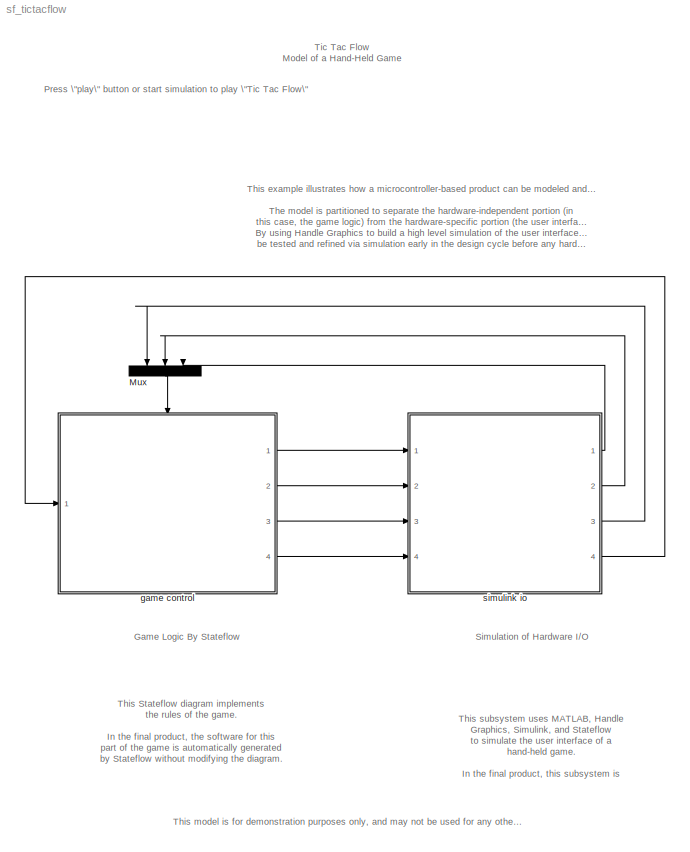
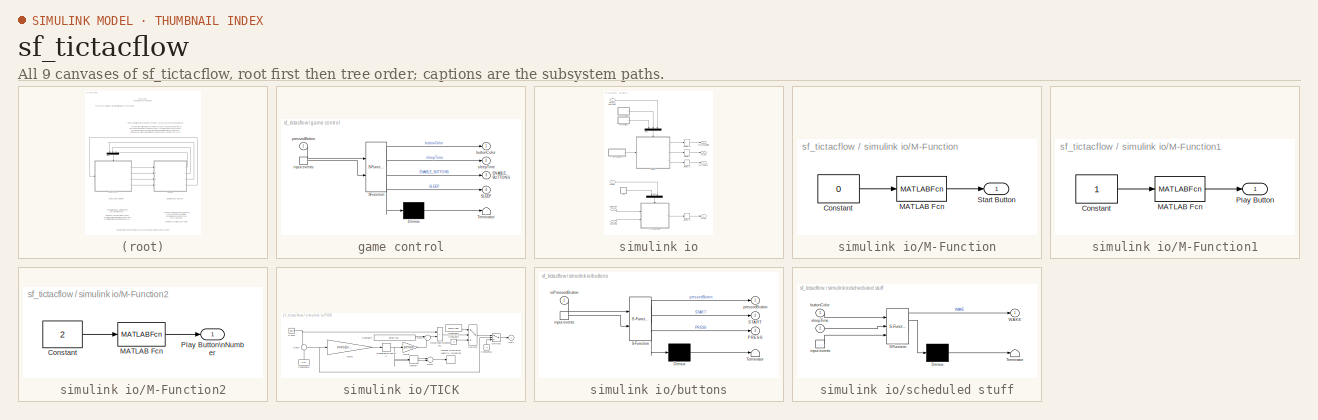
[diagram: thumbnail index - all 9 canvases of the model, root first then tree order]
MODEL sf_tictacflow
KIND model
BLOCK [Mux] Mux
  DisplayOption = bar
  Inputs = 3
  Ports = [3, 1]
BLOCK [SubSystem] game control
  MaskDescription = Stateflow diagram
  MaskDisplay = plot(sf('Private','sfblk','xIcon'),sf('Private','sfblk','yIcon'));text(0.5,0,sf('Private', 'sfblk', 'tIcon'),'HorizontalAl','Center','VerticalAl','Bottom');
  MaskIconFrame = off
  MaskIconOpaque = off
  MaskIconRotate = none
  MaskIconUnits = autoscale
  MaskSelfModifiable = on
  MaskType = Stateflow
  MinAlgLoopOccurrences = off
  Ports = [1, 4, 0, 1]
  PropExecContextAcrossSSBoundary = on
  RTWSystemCode = Auto
  TreatAsAtomicUnit = on
BLOCK [Demux] game control/ Demux 
  Outputs = 1
  Ports = [1, 1]
BLOCK [S-Function] game control/ SFunction 
  FunctionName = sf_sfun
  PortCounts = [2 5]
  Ports = [2, 5]
  Tag = Stateflow S-Function sf_tictacflow 1
BLOCK [Terminator] game control/ Terminator 
BLOCK [TriggerPort] game control/ input events 
  Ports = [0, 1]
  ShowOutputPort = on
  TriggerType = either
BLOCK [Outport] game control/ENABLE_BUTTONS
  IconDisplay = Port number
  Port = 3
BLOCK [Outport] game control/SLEEP
  IconDisplay = Port number
  Port = 4
BLOCK [Outport] game control/buttonColor
  IconDisplay = Port number
BLOCK [Inport] game control/pressedButton
  IconDisplay = Port number
  LatchInput = off
  Port = 1
BLOCK [Outport] game control/sleepTime
  IconDisplay = Port number
  Port = 2
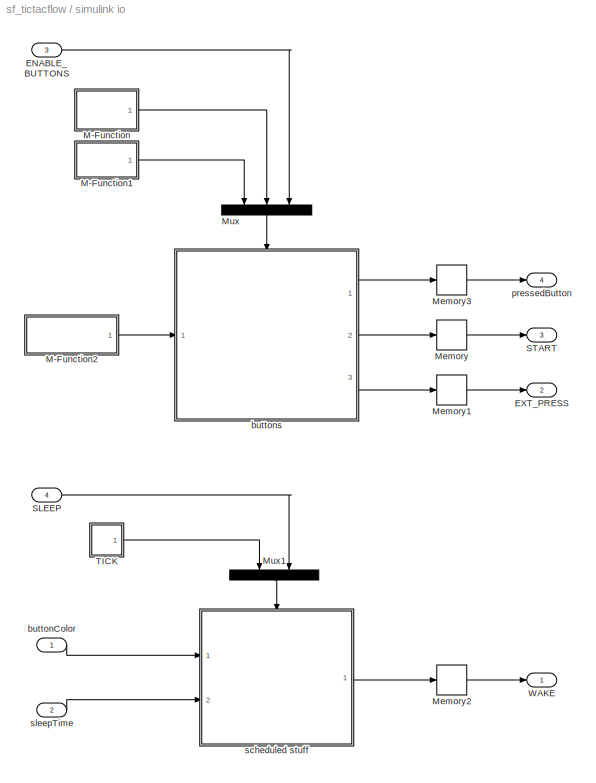
BLOCK [SubSystem] simulink io
  MinAlgLoopOccurrences = off
  Ports = [4, 4]
  PropExecContextAcrossSSBoundary = on
  RTWSystemCode = Auto
  StopFcn = if ishandle(1.000000); delete(1.000000); end;
  TreatAsAtomicUnit = off
BLOCK [Inport] simulink io/ENABLE_BUTTONS
  IconDisplay = Port number
  LatchInput = off
  Port = 3
BLOCK [Outport] simulink io/EXT_PRESS
  IconDisplay = Port number
  Port = 2
BLOCK [SubSystem] simulink io/M-Function
  MinAlgLoopOccurrences = off
  Ports = [0, 1]
  PropExecContextAcrossSSBoundary = on
  RTWSystemCode = Auto
  TreatAsAtomicUnit = off
BLOCK [Constant] simulink io/M-Function/Constant
  Value = 0
BLOCK [MATLABFcn] simulink io/M-Function/MATLAB Fcn
  MATLABFcn = sf_tictacflowgui
BLOCK [Outport] simulink io/M-Function/Start Button
  IconDisplay = Port number
BLOCK [SubSystem] simulink io/M-Function1
  MinAlgLoopOccurrences = off
  Ports = [0, 1]
  PropExecContextAcrossSSBoundary = on
  RTWSystemCode = Auto
  TreatAsAtomicUnit = off
BLOCK [Constant] simulink io/M-Function1/Constant
BLOCK [MATLABFcn] simulink io/M-Function1/MATLAB Fcn
  MATLABFcn = sf_tictacflowgui
BLOCK [Outport] simulink io/M-Function1/Play Button
  IconDisplay = Port number
BLOCK [SubSystem] simulink io/M-Function2
  MinAlgLoopOccurrences = off
  Ports = [0, 1]
  PropExecContextAcrossSSBoundary = on
  RTWSystemCode = Auto
  TreatAsAtomicUnit = off
BLOCK [Constant] simulink io/M-Function2/Constant
  Value = 2
BLOCK [MATLABFcn] simulink io/M-Function2/MATLAB Fcn
  MATLABFcn = sf_tictacflowgui
BLOCK [Outport] simulink io/M-Function2/Play Button\nNumber
  IconDisplay = Port number
BLOCK [Memory] simulink io/Memory
BLOCK [Memory] simulink io/Memory1
BLOCK [Memory] simulink io/Memory2
BLOCK [Memory] simulink io/Memory3
BLOCK [Mux] simulink io/Mux
  DisplayOption = bar
  Inputs = 3
  Ports = [3, 1]
BLOCK [Mux] simulink io/Mux1
  DisplayOption = bar
  Inputs = 2
  Ports = [2, 1]
BLOCK [Inport] simulink io/SLEEP
  IconDisplay = Port number
  LatchInput = off
  Port = 4
BLOCK [Outport] simulink io/START
  IconDisplay = Port number
  Port = 3
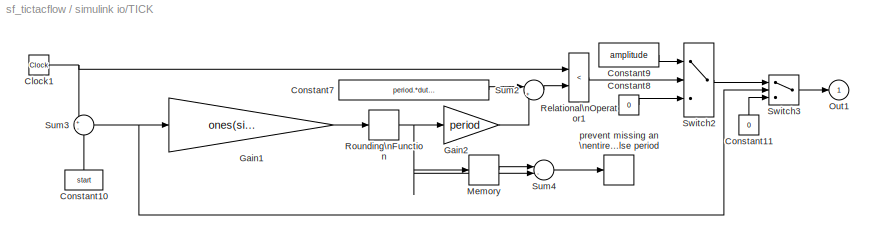
BLOCK [SubSystem] simulink io/TICK
  MaskCallbackString = |||
  MaskDescription = Pulse Generator
  MaskDisplay = plot(0,0,100,100,[95,90,90,75,75,60,60,45,45,30,30,15,15,5],[25,25,75,75,25,25,75,75,25,25,75,75,25,25]);
  MaskEnableString = on,on,on,on
  MaskHelp = Pulse generator which ensures pulse transitions are hit. Provides a vector of pulses when the height is entered as a vector.  Unmask to see how it works.
  MaskIconFrame = on
  MaskIconOpaque = on
  MaskIconRotate = none
  MaskIconUnits = autoscale
  MaskInitialization = \n
  MaskPromptString = Period (secs):|Duty cycle (% of period):|Amplitude:|Start time:
  MaskStyleString = edit,edit,edit,edit
  MaskTabNameString = ,,,
  MaskToolTipString = on,on,on,on
  MaskTunableValueString = on,on,on,on
  MaskType = Pulse Generator
  MaskValueString = 1/60|50|1|0
  MaskVarAliasString = ,,,
  MaskVariables = period=@1;duty=@2;amplitude=@3;start=@4;
  MaskVisibilityString = on,on,on,on
  MinAlgLoopOccurrences = off
  Ports = [0, 1]
  PropExecContextAcrossSSBoundary = on
  RTWSystemCode = Auto
  TreatAsAtomicUnit = off
BLOCK [Clock] simulink io/TICK/Clock1
  Decimation = 10
BLOCK [Constant] simulink io/TICK/Constant10
  Value = start
BLOCK [Constant] simulink io/TICK/Constant11
  Value = 0
BLOCK [Constant] simulink io/TICK/Constant7
  Value = period.*duty/100 + start
BLOCK [Constant] simulink io/TICK/Constant8
  Value = 0
BLOCK [Constant] simulink io/TICK/Constant9
  Value = amplitude
BLOCK [Gain] simulink io/TICK/Gain1
  Gain = ones(size(period))./period
BLOCK [Gain] simulink io/TICK/Gain2
  Gain = period
BLOCK [Memory] simulink io/TICK/Memory
BLOCK [Outport] simulink io/TICK/Out1
  IconDisplay = Port number
BLOCK [RelationalOperator] simulink io/TICK/Relational\nOperator1
  Operator = <
BLOCK [Rounding] simulink io/TICK/Rounding\nFunction
BLOCK [Sum] simulink io/TICK/Sum2
  IconShape = round
  Inputs = |++
  Ports = [2, 1]
BLOCK [Sum] simulink io/TICK/Sum3
  IconShape = round
  Inputs = +-
  Ports = [2, 1]
BLOCK [Sum] simulink io/TICK/Sum4
  IconShape = round
  Inputs = |-+
  Ports = [2, 1]
BLOCK [Switch] simulink io/TICK/Switch2
  Threshold = 0.5
BLOCK [Switch] simulink io/TICK/Switch3
BLOCK [HitCross] simulink io/TICK/prevent missing an \nentire pulse period
  HitCrossingDirection = either
  HitCrossingOffset = 1
  Ports = [1]
  ShowOutputPort = off
BLOCK [Outport] simulink io/WAKE
  IconDisplay = Port number
BLOCK [Inport] simulink io/buttonColor
  IconDisplay = Port number
  LatchInput = off
  Port = 1
BLOCK [SubSystem] simulink io/buttons
  MaskDescription = Stateflow diagram
  MaskDisplay = plot(sf('Private','sfblk','xIcon'),sf('Private','sfblk','yIcon'));text(0.5,0,sf('Private', 'sfblk', 'tIcon'),'HorizontalAl','Center','VerticalAl','Bottom');
  MaskIconFrame = off
  MaskIconOpaque = off
  MaskIconRotate = none
  MaskIconUnits = autoscale
  MaskSelfModifiable = on
  MaskType = Stateflow
  MinAlgLoopOccurrences = off
  Ports = [1, 3, 0, 1]
  PropExecContextAcrossSSBoundary = on
  RTWSystemCode = Auto
  TreatAsAtomicUnit = on
BLOCK [Demux] simulink io/buttons/ Demux 
  Outputs = 1
  Ports = [1, 1]
BLOCK [S-Function] simulink io/buttons/ SFunction 
  FunctionName = sf_sfun
  PortCounts = [2 4]
  Ports = [2, 4]
  Tag = Stateflow S-Function sf_tictacflow 2
BLOCK [Terminator] simulink io/buttons/ Terminator 
BLOCK [TriggerPort] simulink io/buttons/ input events 
  Ports = [0, 1]
  ShowOutputPort = on
  TriggerType = either
BLOCK [Outport] simulink io/buttons/PRESS
  IconDisplay = Port number
  Port = 3
BLOCK [Outport] simulink io/buttons/START
  IconDisplay = Port number
  Port = 2
BLOCK [Inport] simulink io/buttons/ioPressedButton
  IconDisplay = Port number
  LatchInput = off
  Port = 1
BLOCK [Outport] simulink io/buttons/pressedButton
  IconDisplay = Port number
BLOCK [Outport] simulink io/pressedButton
  IconDisplay = Port number
  Port = 4
BLOCK [SubSystem] simulink io/scheduled stuff
  MaskDescription = Stateflow diagram
  MaskDisplay = plot(sf('Private','sfblk','xIcon'),sf('Private','sfblk','yIcon'));text(0.5,0,sf('Private', 'sfblk', 'tIcon'),'HorizontalAl','Center','VerticalAl','Bottom');
  MaskIconFrame = off
  MaskIconOpaque = off
  MaskIconRotate = none
  MaskIconUnits = autoscale
  MaskSelfModifiable = on
  MaskType = Stateflow
  MinAlgLoopOccurrences = off
  Ports = [2, 1, 0, 1]
  PropExecContextAcrossSSBoundary = on
  RTWSystemCode = Auto
  TreatAsAtomicUnit = on
BLOCK [Demux] simulink io/scheduled stuff/ Demux 
  Outputs = 1
  Ports = [1, 1]
BLOCK [S-Function] simulink io/scheduled stuff/ SFunction 
  FunctionName = sf_sfun
  PortCounts = [3 2]
  Ports = [3, 2]
  Tag = Stateflow S-Function sf_tictacflow 3
BLOCK [Terminator] simulink io/scheduled stuff/ Terminator 
BLOCK [TriggerPort] simulink io/scheduled stuff/ input events 
  Ports = [0, 1]
  ShowOutputPort = on
  TriggerType = either
BLOCK [Outport] simulink io/scheduled stuff/WAKE
  IconDisplay = Port number
BLOCK [Inport] simulink io/scheduled stuff/buttonColor
  IconDisplay = Port number
  LatchInput = off
  Port = 1
BLOCK [Inport] simulink io/scheduled stuff/sleepTime
  IconDisplay = Port number
  LatchInput = off
  Port = 2
BLOCK [Inport] simulink io/sleepTime
  IconDisplay = Port number
  LatchInput = off
  Port = 2
ANNOTATION (root): Game Logic By Stateflow
ANNOTATION (root): Press \"play\" button or start simulation to play \"Tic Tac Flow\"
ANNOTATION (root): Simulation of Hardware I/O
ANNOTATION (root): This Stateflow diagram implements\nthe rules of the game.\n\nIn the final product, the software for this \npart of the game is automatically generated\n by Stateflow without modifying the diagram.
ANNOTATION (root): This example illustrates how a microcontroller-based product can be modeled and implemented using Stateflow.\n\nThe model is partitioned to separate the hardware-independent portion (in \nthis case, the game logic) from the hardware-specific portion (the user interface).\nBy using Handle Graphics to build a high level simulation of the user interface, the product concept can\n be tested and refine...<+307ch>
ANNOTATION (root): This model is for demonstration purposes only, and may not be used for any other purpose.
ANNOTATION (root): This subsystem uses MATLAB, Handle \nGraphics, Simulink, and Stateflow\n to simulate the user interface of a \nhand-held game.\n\nIn the final product, this subsystem is \nreplaced by electronic hardware and \nlow level driver software.
ANNOTATION (root): Tic Tac Flow\nModel of a Hand-Held Game
LINE Mux:1 -> game control:trigger
LINE game control/ Demux :1 -> game control/ Terminator :1
LINE game control/ SFunction :1 -> game control/ Demux :1
LINE game control/ SFunction :2 -> game control/buttonColor:1
LINE game control/ SFunction :3 -> game control/sleepTime:1
LINE game control/ SFunction :4 -> game control/ENABLE_BUTTONS:1
LINE game control/ SFunction :5 -> game control/SLEEP:1
LINE game control/ input events :1 -> game control/ SFunction :2
LINE game control/pressedButton:1 -> game control/ SFunction :1
LINE game control:1 -> simulink io:1
LINE game control:2 -> simulink io:2
LINE game control:3 -> simulink io:3
LINE game control:4 -> simulink io:4
LINE simulink io/ENABLE_BUTTONS:1 -> simulink io/Mux:3
LINE simulink io/M-Function/Constant:1 -> simulink io/M-Function/MATLAB Fcn:1
LINE simulink io/M-Function/MATLAB Fcn:1 -> simulink io/M-Function/Start Button:1
LINE simulink io/M-Function1/Constant:1 -> simulink io/M-Function1/MATLAB Fcn:1
LINE simulink io/M-Function1/MATLAB Fcn:1 -> simulink io/M-Function1/Play Button:1
LINE simulink io/M-Function1:1 -> simulink io/Mux:1
LINE simulink io/M-Function2/Constant:1 -> simulink io/M-Function2/MATLAB Fcn:1
LINE simulink io/M-Function2/MATLAB Fcn:1 -> simulink io/M-Function2/Play Button\nNumber:1
LINE simulink io/M-Function2:1 -> simulink io/buttons:1
LINE simulink io/M-Function:1 -> simulink io/Mux:2
LINE simulink io/Memory1:1 -> simulink io/EXT_PRESS:1
LINE simulink io/Memory2:1 -> simulink io/WAKE:1
LINE simulink io/Memory3:1 -> simulink io/pressedButton:1
LINE simulink io/Memory:1 -> simulink io/START:1
LINE simulink io/Mux1:1 -> simulink io/scheduled stuff:trigger
LINE simulink io/Mux:1 -> simulink io/buttons:trigger
LINE simulink io/SLEEP:1 -> simulink io/Mux1:2
NET simulink io/TICK/Clock1:1 -> simulink io/TICK/Relational\nOperator1:1, simulink io/TICK/Sum3:1
LINE simulink io/TICK/Constant10:1 -> simulink io/TICK/Sum3:2
LINE simulink io/TICK/Constant11:1 -> simulink io/TICK/Switch3:3
LINE simulink io/TICK/Constant7:1 -> simulink io/TICK/Sum2:1
LINE simulink io/TICK/Constant8:1 -> simulink io/TICK/Switch2:3
LINE simulink io/TICK/Constant9:1 -> simulink io/TICK/Switch2:1
LINE simulink io/TICK/Gain1:1 -> simulink io/TICK/Rounding\nFunction:1
LINE simulink io/TICK/Gain2:1 -> simulink io/TICK/Sum2:2
LINE simulink io/TICK/Memory:1 -> simulink io/TICK/Sum4:1
LINE simulink io/TICK/Relational\nOperator1:1 -> simulink io/TICK/Switch2:2
NET simulink io/TICK/Rounding\nFunction:1 -> simulink io/TICK/Gain2:1, simulink io/TICK/Memory:1, simulink io/TICK/Sum4:2
LINE simulink io/TICK/Sum2:1 -> simulink io/TICK/Relational\nOperator1:2
NET simulink io/TICK/Sum3:1 -> simulink io/TICK/Gain1:1, simulink io/TICK/Switch3:2
LINE simulink io/TICK/Sum4:1 -> simulink io/TICK/prevent missing an \nentire pulse period:1
LINE simulink io/TICK/Switch2:1 -> simulink io/TICK/Switch3:1
LINE simulink io/TICK/Switch3:1 -> simulink io/TICK/Out1:1
LINE simulink io/TICK:1 -> simulink io/Mux1:1
LINE simulink io/buttonColor:1 -> simulink io/scheduled stuff:1
LINE simulink io/buttons/ Demux :1 -> simulink io/buttons/ Terminator :1
LINE simulink io/buttons/ SFunction :1 -> simulink io/buttons/ Demux :1
LINE simulink io/buttons/ SFunction :2 -> simulink io/buttons/pressedButton:1
LINE simulink io/buttons/ SFunction :3 -> simulink io/buttons/START:1
LINE simulink io/buttons/ SFunction :4 -> simulink io/buttons/PRESS:1
LINE simulink io/buttons/ input events :1 -> simulink io/buttons/ SFunction :2
LINE simulink io/buttons/ioPressedButton:1 -> simulink io/buttons/ SFunction :1
LINE simulink io/buttons:1 -> simulink io/Memory3:1
LINE simulink io/buttons:2 -> simulink io/Memory:1
LINE simulink io/buttons:3 -> simulink io/Memory1:1
LINE simulink io/scheduled stuff/ Demux :1 -> simulink io/scheduled stuff/ Terminator :1
LINE simulink io/scheduled stuff/ SFunction :1 -> simulink io/scheduled stuff/ Demux :1
LINE simulink io/scheduled stuff/ SFunction :2 -> simulink io/scheduled stuff/WAKE:1
LINE simulink io/scheduled stuff/ input events :1 -> simulink io/scheduled stuff/ SFunction :3
LINE simulink io/scheduled stuff/buttonColor:1 -> simulink io/scheduled stuff/ SFunction :1
LINE simulink io/scheduled stuff/sleepTime:1 -> simulink io/scheduled stuff/ SFunction :2
LINE simulink io/scheduled stuff:1 -> simulink io/Memory2:1
LINE simulink io/sleepTime:1 -> simulink io/scheduled stuff:2
LINE simulink io:1 -> Mux:3
LINE simulink io:2 -> Mux:2
LINE simulink io:3 -> Mux:1
LINE simulink io:4 -> game control:1
note: NET lines group one-source signal fan-out (src -> all destinations, sorted); 1:1 wires keep LINE
CHART game control states=65 transitions=146
  STATE_LABEL 'yes = make_move_if_available(move)'
  STATE_LABEL 'shift_game_state(magicNumber)'
  STATE_LABEL 'button_7'
  STATE_LABEL 'enabled\\nbuttonColor[thisButton] = DARK;'
  STATE_LABEL 'red\\nbuttonColor[9] = RED;\\nENABLE_BUTTONS;'
  STATE_LABEL 'yes = is_a_winner()'
  STATE_LABEL 'game_over'
  STATE_LABEL 'green\\nbuttonColor[9] = GREEN;'
  STATE_LABEL 'awakened\\nchoose_move();'
  STATE_LABEL 'active'
  STATE_LABEL 'green\\nbuttonColor[thisButton] = GREEN;\\nTURN;'
  STATE_LABEL 'disabled'
  STATE_LABEL 'red\\nbuttonColor[thisButton] = RED;\\nTURN;'
  STATE_LABEL 'move = choose_move()'
  STATE_LABEL 'button_0'
  STATE_LABEL 'disabled'
  STATE_LABEL 'enabled\\nbuttonColor[thisButton] = DARK;'
  STATE_LABEL 'active'
  STATE_LABEL 'red\\nbuttonColor[thisButton] = RED;\\nTURN;'
  STATE_LABEL 'green\\nbuttonColor[thisButton] = GREEN;\\nTURN;'
  STATE_LABEL 'button_5'
  STATE_LABEL 'disabled'
  STATE_LABEL 'enabled\\nbuttonColor[thisButton] = DARK;'
  STATE_LABEL 'active'
  STATE_LABEL 'red\\nbuttonColor[thisButton] = RED;\\nTURN;'
  STATE_LABEL 'green\\nbuttonColor[thisButton] = GREEN;\\nTURN;'
  STATE_LABEL 'button_6'
  STATE_LABEL 'disabled'
  STATE_LABEL 'enabled\\nbuttonColor[thisButton] = DARK;'
  STATE_LABEL 'active'
  STATE_LABEL 'red\\nbuttonColor[thisButton] = RED;\\nTURN;'
  STATE_LABEL 'green\\nbuttonColor[thisButton] = GREEN;\\nTURN;'
  STATE_LABEL 'button_4'
  STATE_LABEL 'disabled'
  STATE_LABEL 'enabled\\nbuttonColor[thisButton] = DARK;'
  STATE_LABEL 'active'
  STATE_LABEL 'red\\nbuttonColor[thisButton] = RED;\\nTURN;'
  STATE_LABEL 'green\\nbuttonColor[thisButton] = GREEN;\\nTURN;'
  STATE_LABEL 'button_2'
  STATE_LABEL 'disabled'
CHART simulink io/buttons states=1 transitions=7
  STATE_LABEL "io\\nen:\\n  figH = ml.sf_tictacflowgui('fig');\\n  ml.set(figH,'Pointer','arrow');\\n  /* note mapping between magic numbers and button location:\\n     buttonH[magic] = ml.play_button_magic(figH,location,magic);  */\\n  buttonH[0] = ml.sf_tictacflowgui('play_button',figH,1,0);\\n  buttonH[1] = ml.sf_tictacflowgui('play_button',figH,8,1);\\n  buttonH[2] = ml.sf_tictacflowgui('play_button',figH,3,2);\\n  b...<+479ch>"
CHART simulink io/scheduled stuff states=5 transitions=9
  STATE_LABEL 'sleep'
  STATE_LABEL 'stop'
  STATE_LABEL "asleep\\nentry:\\nml.set(figH,'Pointer','watch');\\nexit:\\nml.set(figH,'Pointer','arrow');"
  STATE_LABEL 'awake'
  STATE_LABEL 'update_LEDs'
